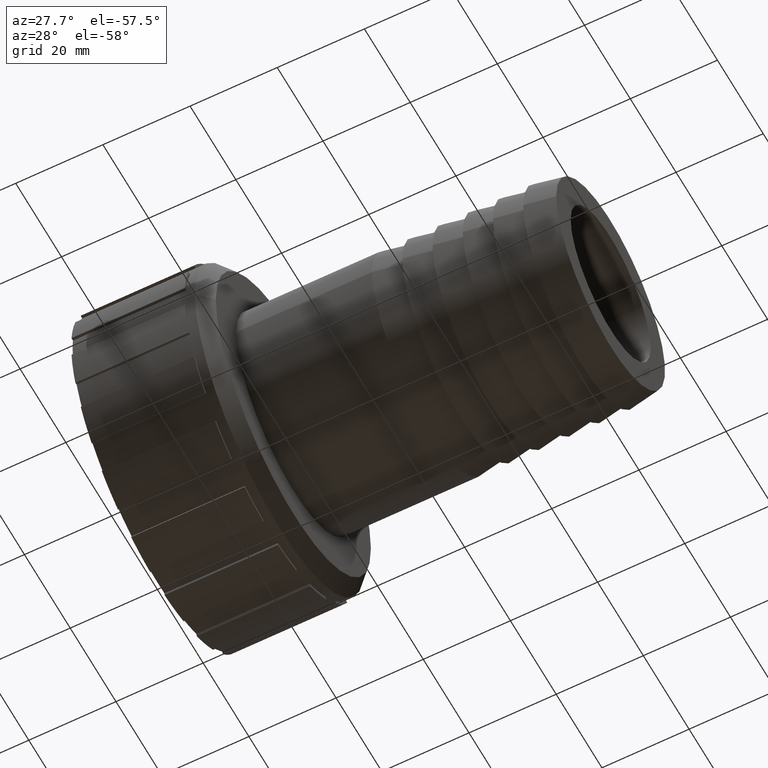
[diagram: clean part render]
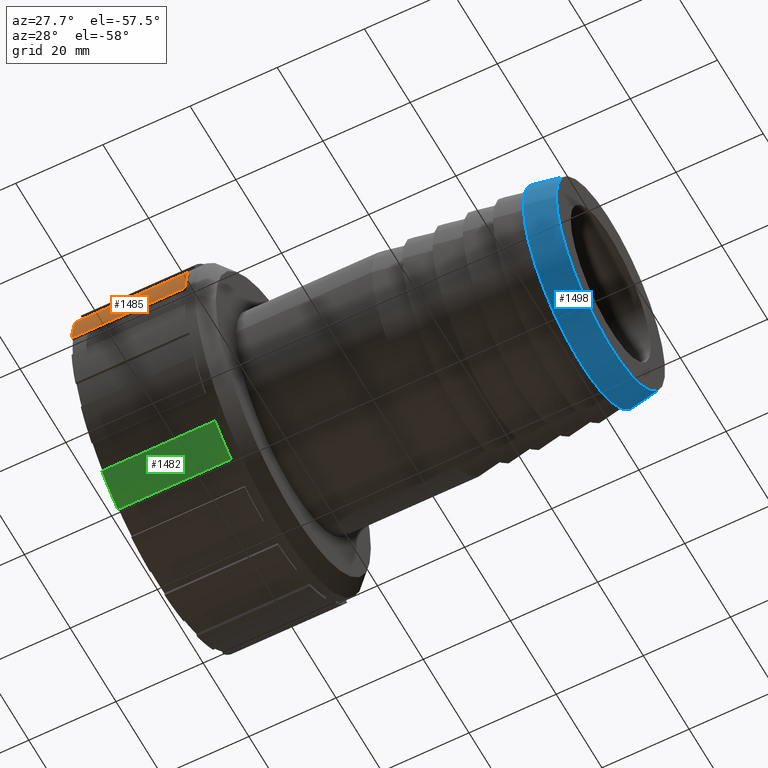
[diagram: same view with three faces highlighted in distinct colors, each labeled with its STEP entity id]
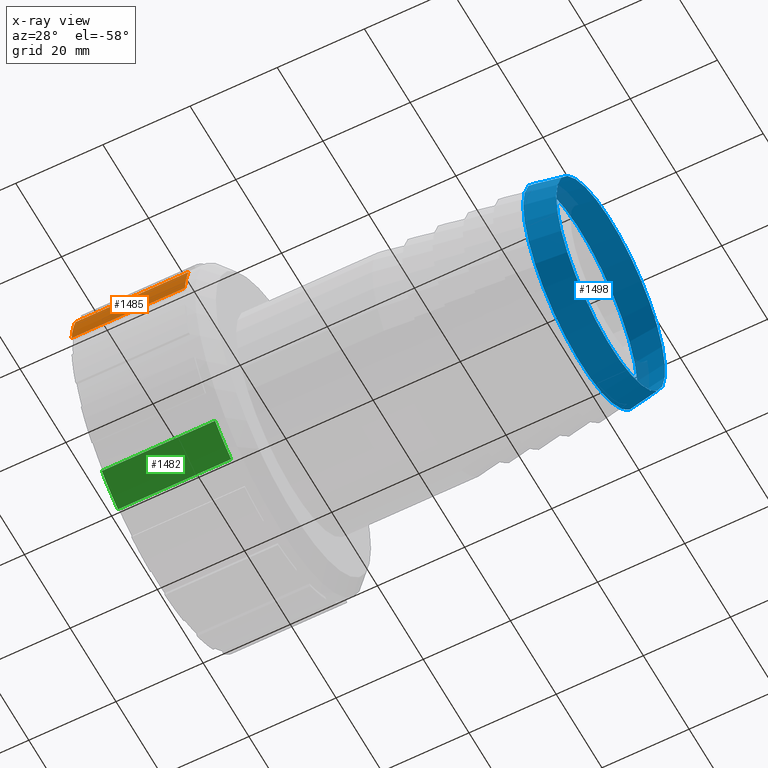
[diagram: x-ray of the same camera — body ghosted, the three highlighted faces saturated]
A machine part, auxiliary view with three faces highlighted in distinct colors.
The next image is the same camera in x-ray (body ghosted, the three faces saturated) — at least one of them is partly hidden behind the body in this view.
Their STEP definitions:

[orange] entity #1485 — the highlighted cylindrical surface (partial cylindrical patch) has radius 37.6512 mm, axis along (-1, 0, 0).
#34=CYLINDRICAL_SURFACE('',#1636,37.6512);
#89=CIRCLE('',#1570,37.6512);
#119=CIRCLE('',#1613,37.6512);
#204=FACE_OUTER_BOUND('',#289,.T.);
#289=EDGE_LOOP('',(#1244,#1245,#1246,#1247));
#354=LINE('',#2194,#482);
#360=LINE('',#2206,#488);
#482=VECTOR('',#1714,26.);
#488=VECTOR('',#1722,26.);
#609=VERTEX_POINT('',#2190);
#611=VERTEX_POINT('',#2193);
#614=VERTEX_POINT('',#2200);
#616=VERTEX_POINT('',#2204);
#757=EDGE_CURVE('',#611,#609,#354,.T.);
#763=EDGE_CURVE('',#614,#616,#360,.T.);
#885=EDGE_CURVE('',#614,#609,#89,.T.);
#916=EDGE_CURVE('',#616,#611,#119,.T.);
#1244=ORIENTED_EDGE('',*,*,#757,.T.);
#1245=ORIENTED_EDGE('',*,*,#885,.F.);
#1246=ORIENTED_EDGE('',*,*,#763,.T.);
#1247=ORIENTED_EDGE('',*,*,#916,.T.);
#1485=ADVANCED_FACE('',(#204),#34,.T.);
#1570=AXIS2_PLACEMENT_3D('',#2448,#1919,#1920);
#1613=AXIS2_PLACEMENT_3D('',#2495,#2006,#2007);
#1636=AXIS2_PLACEMENT_3D('',#2522,#2054,#2055);
#1714=DIRECTION('',(-1.,0.,0.));
#1722=DIRECTION('',(1.,0.,0.));
#1919=DIRECTION('center_axis',(-1.,0.,0.));
#1920=DIRECTION('ref_axis',(0.,0.,1.));
#2006=DIRECTION('center_axis',(-1.,0.,0.));
#2007=DIRECTION('ref_axis',(0.,0.,1.));
#2054=DIRECTION('center_axis',(-1.,0.,0.));
#2055=DIRECTION('ref_axis',(0.,-1.,0.));
#2190=CARTESIAN_POINT('',(0.,-35.8648883190124,11.4596093870939));
#2193=CARTESIAN_POINT('',(26.,-35.8648883190124,11.4596093870939));
#2194=CARTESIAN_POINT('',(13.,-35.8648883190124,11.4596093870939));
#2200=CARTESIAN_POINT('',(0.,-37.520238907555,3.13759999999996));
#2204=CARTESIAN_POINT('',(26.,-37.5202389075549,3.13759999999996));
#2206=CARTESIAN_POINT('',(13.,-37.520238907555,3.13759999999996));
#2448=CARTESIAN_POINT('Origin',(0.,0.,0.));
#2495=CARTESIAN_POINT('Origin',(26.,0.,0.));
#2522=CARTESIAN_POINT('Origin',(13.,0.,0.));

[blue] entity #1498 — the highlighted conical surface has half-angle 10 deg.
#16=CONICAL_SURFACE('',#1656,24.388733133544,9.99999999999998);
#50=FACE_BOUND('',#310,.T.);
#133=CIRCLE('',#1655,23.777466267088);
#134=CIRCLE('',#1657,25.);
#217=FACE_OUTER_BOUND('',#309,.T.);
#309=EDGE_LOOP('',(#1345));
#310=EDGE_LOOP('',(#1346));
#724=VERTEX_POINT('',#2550);
#725=VERTEX_POINT('',#2553);
#935=EDGE_CURVE('',#724,#724,#133,.T.);
#936=EDGE_CURVE('',#725,#725,#134,.T.);
#1345=ORIENTED_EDGE('',*,*,#935,.T.);
#1346=ORIENTED_EDGE('',*,*,#936,.F.);
#1498=ADVANCED_FACE('',(#217,#50),#16,.T.);
#1655=AXIS2_PLACEMENT_3D('',#2551,#2095,#2096);
#1656=AXIS2_PLACEMENT_3D('',#2552,#2097,#2098);
#1657=AXIS2_PLACEMENT_3D('',#2554,#2099,#2100);
#2095=DIRECTION('center_axis',(-1.,0.,0.));
#2096=DIRECTION('ref_axis',(0.,0.,1.));
#2097=DIRECTION('center_axis',(-1.,0.,0.));
#2098=DIRECTION('ref_axis',(0.,-1.,0.));
#2099=DIRECTION('center_axis',(-1.,0.,0.));
#2100=DIRECTION('ref_axis',(0.,0.,1.));
#2550=CARTESIAN_POINT('',(104.,-23.777466267088,0.));
#2551=CARTESIAN_POINT('Origin',(104.,0.,0.));
#2552=CARTESIAN_POINT('Origin',(100.533333333333,0.,0.));
#2553=CARTESIAN_POINT('',(97.0666666666667,-25.,0.));
#2554=CARTESIAN_POINT('Origin',(97.0666666666667,0.,0.));

[green] entity #1482 — the highlighted cylindrical surface (partial cylindrical patch) has radius 37.6512 mm, axis along (-1, 0, 0).
#31=CYLINDRICAL_SURFACE('',#1633,37.6512);
#83=CIRCLE('',#1564,37.6512);
#113=CIRCLE('',#1604,37.6512);
#201=FACE_OUTER_BOUND('',#286,.T.);
#286=EDGE_LOOP('',(#1232,#1233,#1234,#1235));
#378=LINE('',#2248,#506);
#384=LINE('',#2260,#512);
#506=VECTOR('',#1750,26.);
#512=VECTOR('',#1758,26.);
#633=VERTEX_POINT('',#2244);
#635=VERTEX_POINT('',#2247);
#638=VERTEX_POINT('',#2254);
#640=VERTEX_POINT('',#2258);
#781=EDGE_CURVE('',#635,#633,#378,.T.);
#787=EDGE_CURVE('',#638,#640,#384,.T.);
#879=EDGE_CURVE('',#638,#633,#83,.T.);
#910=EDGE_CURVE('',#640,#635,#113,.T.);
#1232=ORIENTED_EDGE('',*,*,#781,.T.);
#1233=ORIENTED_EDGE('',*,*,#879,.F.);
#1234=ORIENTED_EDGE('',*,*,#787,.T.);
#1235=ORIENTED_EDGE('',*,*,#910,.T.);
#1482=ADVANCED_FACE('',(#201),#31,.T.);
#1564=AXIS2_PLACEMENT_3D('',#2442,#1907,#1908);
#1604=AXIS2_PLACEMENT_3D('',#2486,#1988,#1989);
#1633=AXIS2_PLACEMENT_3D('',#2519,#2048,#2049);
#1750=DIRECTION('',(-1.,0.,0.));
#1758=DIRECTION('',(1.,0.,0.));
#1907=DIRECTION('center_axis',(-1.,0.,0.));
#1908=DIRECTION('ref_axis',(0.,0.,1.));
#1988=DIRECTION('center_axis',(-1.,0.,0.));
#1989=DIRECTION('ref_axis',(0.,0.,1.));
#2048=DIRECTION('center_axis',(-1.,0.,0.));
#2049=DIRECTION('ref_axis',(0.,-1.,0.));
#2244=CARTESIAN_POINT('',(0.,-24.3121971266205,-28.7494335999224));
#2247=CARTESIAN_POINT('',(26.,-24.3121971266205,-28.7494335999224));
#2248=CARTESIAN_POINT('',(13.,-24.3121971266205,-28.7494335999224));
#2254=CARTESIAN_POINT('',(0.,-17.2571382295087,-33.463473244235));
#2258=CARTESIAN_POINT('',(26.,-17.2571382295087,-33.463473244235));
#2260=CARTESIAN_POINT('',(13.,-17.2571382295087,-33.463473244235));
#2442=CARTESIAN_POINT('Origin',(0.,0.,0.));
#2486=CARTESIAN_POINT('Origin',(26.,0.,0.));
#2519=CARTESIAN_POINT('Origin',(13.,0.,0.));